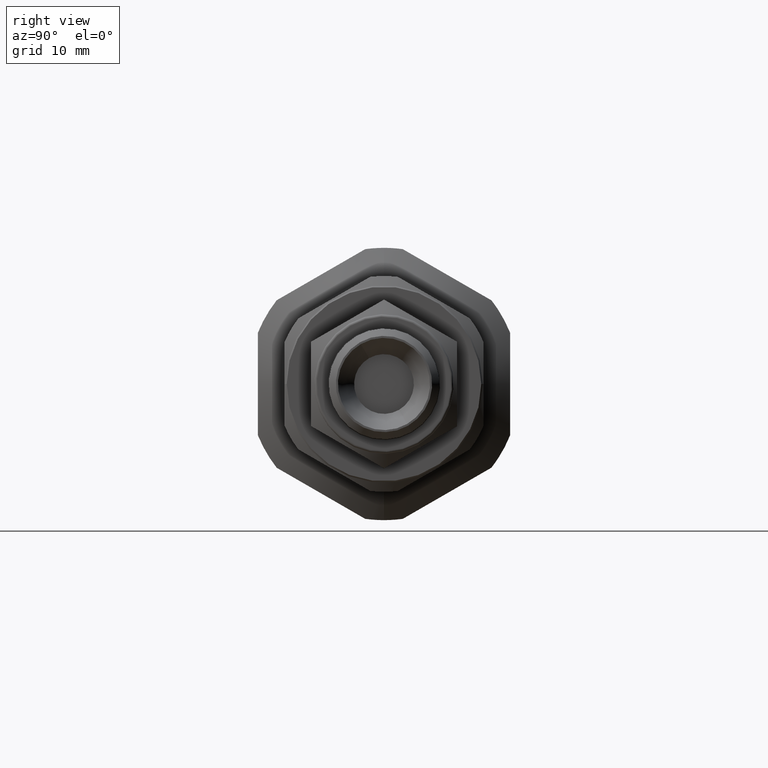
[diagram: clean part render]
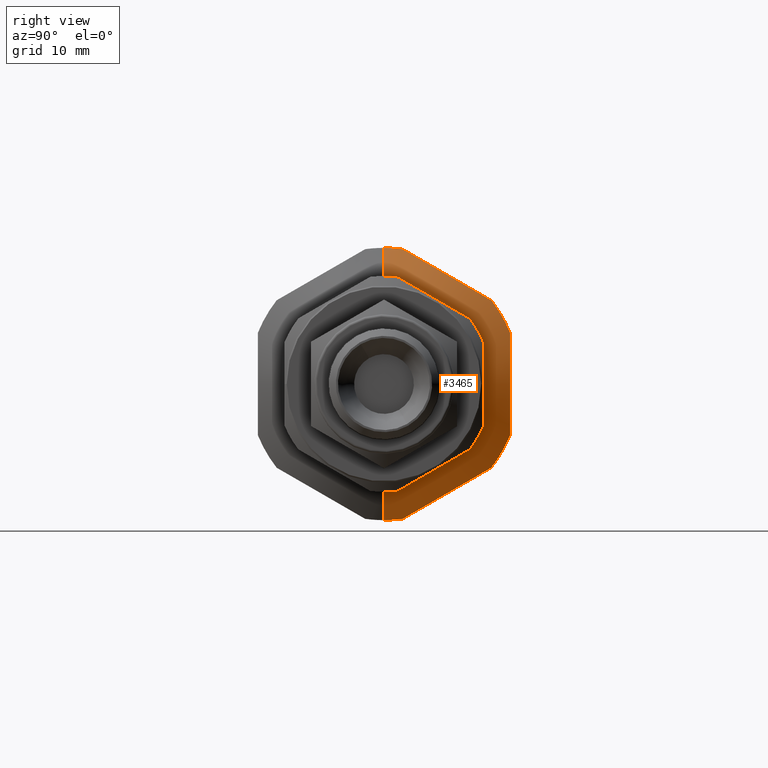
[diagram: same view with one face highlighted and labeled with its STEP entity id]
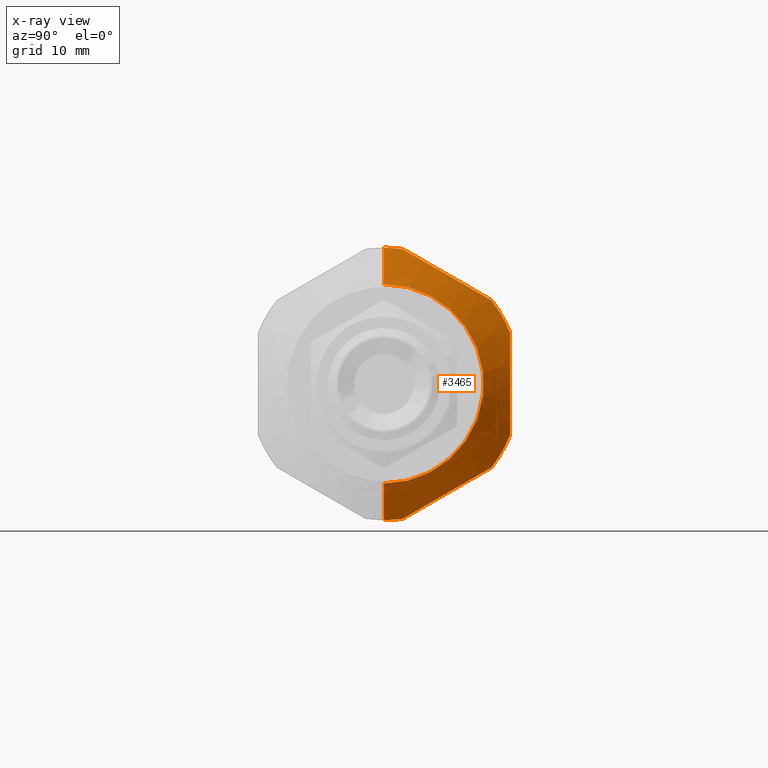
[diagram: x-ray of the same camera — body ghosted, the highlighted face saturated]
A machine part, right view. The second image highlights one B-rep face of the part: STEP entity #3465.
The next image is the same camera in x-ray: the body ghosted, the highlighted face saturated — about 0% of this face is hidden behind the body in this view.
In plain terms, the highlighted conical surface has half-angle 60 deg.
Its self-contained STEP definition (entity closure, byte-faithful):
#32 = VERTEX_POINT ( 'NONE', #426 ) ;
#35 = VERTEX_POINT ( 'NONE', #429 ) ;
#38 = VERTEX_POINT ( 'NONE', #432 ) ;
#41 = VERTEX_POINT ( 'NONE', #435 ) ;
#43 = VERTEX_POINT ( 'NONE', #437 ) ;
#45 = VERTEX_POINT ( 'NONE', #439 ) ;
#57 = VERTEX_POINT ( 'NONE', #451 ) ;
#58 = VERTEX_POINT ( 'NONE', #453 ) ;
#59 = VERTEX_POINT ( 'NONE', #454 ) ;
#75 = VERTEX_POINT ( 'NONE', #470 ) ;
#82 = ORIENTED_EDGE ( 'NONE', *, *, #2296, .F. ) ;
#84 = ORIENTED_EDGE ( 'NONE', *, *, #2297, .F. ) ;
#85 = ORIENTED_EDGE ( 'NONE', *, *, #2293, .T. ) ;
#87 = ORIENTED_EDGE ( 'NONE', *, *, #2295, .F. ) ;
#89 = ORIENTED_EDGE ( 'NONE', *, *, #2298, .F. ) ;
#90 = ORIENTED_EDGE ( 'NONE', *, *, #2299, .F. ) ;
#94 = ORIENTED_EDGE ( 'NONE', *, *, #2294, .T. ) ;
#173 = ORIENTED_EDGE ( 'NONE', *, *, #2302, .F. ) ;
#256 = EDGE_LOOP ( 'NONE', ( #85, #94, #87, #82, #84, #89, #90, #331, #330, #173 ) ) ;
#330 = ORIENTED_EDGE ( 'NONE', *, *, #2301, .F. ) ;
#331 = ORIENTED_EDGE ( 'NONE', *, *, #2300, .F. ) ;
#426 = CARTESIAN_POINT ( 'NONE',  ( 47.82457351945704700, 18.99999999999999300, 7.697402159170346500 ) ) ;
#429 = CARTESIAN_POINT ( 'NONE',  ( 47.82457351945704700, 16.16614581298670900, -12.60578159231915400 ) ) ;
#432 = CARTESIAN_POINT ( 'NONE',  ( 51.00000000000000000, 0.0000000000000000000, 15.00000000000000000 ) ) ;
#435 = CARTESIAN_POINT ( 'NONE',  ( 47.82457351945704700, 19.00000000000000000, -7.697402159170335000 ) ) ;
#437 = CARTESIAN_POINT ( 'NONE',  ( 47.82457351945704700, 0.0000000000000000000, 20.50000000000000000 ) ) ;
#439 = CARTESIAN_POINT ( 'NONE',  ( 51.00000000000000000, 2.173748068486552000E-015, -15.00000000000000000 ) ) ;
#451 = CARTESIAN_POINT ( 'NONE',  ( 47.82457351945704700, 16.16614581298668800, 12.60578159231917400 ) ) ;
#453 = CARTESIAN_POINT ( 'NONE',  ( 47.82457351945704700, 2.833854187013312900, 20.30318375148950200 ) ) ;
#454 = CARTESIAN_POINT ( 'NONE',  ( 47.82457351945704700, 2.833854187013301400, -20.30318375148949900 ) ) ;
#470 = CARTESIAN_POINT ( 'NONE',  ( 47.82457351945704700, 2.510525938252074100E-015, -20.50000000000000000 ) ) ;
#987 = CARTESIAN_POINT ( 'NONE',  ( 51.00000000000000000, 0.0000000000000000000, 0.0000000000000000000 ) ) ;
#988 = DIRECTION ( 'NONE',  ( -1.000000000000000000, 0.0000000000000000000, 0.0000000000000000000 ) ) ;
#989 = DIRECTION ( 'NONE',  ( 0.0000000000000000000, 0.0000000000000000000, 1.000000000000000000 ) ) ;
#990 = CARTESIAN_POINT ( 'NONE',  ( 51.00000000000000000, 1.836970198721029600E-015, -15.00000000000000000 ) ) ;
#991 = DIRECTION ( 'NONE',  ( -0.5000000000000006700, 1.060575238724906400E-016, -0.8660254037844382600 ) ) ;
#992 = CARTESIAN_POINT ( 'NONE',  ( 47.82457351945704700, 0.0000000000000000000, 0.0000000000000000000 ) ) ;
#993 = DIRECTION ( 'NONE',  ( -1.000000000000000000, 0.0000000000000000000, 0.0000000000000000000 ) ) ;
#994 = DIRECTION ( 'NONE',  ( 0.0000000000000000000, 0.0000000000000000000, 1.000000000000000000 ) ) ;
#995 = CARTESIAN_POINT ( 'NONE',  ( 47.82457351945704700, 16.16614581298670900, -12.60578159231915400 ) ) ;
#996 = CARTESIAN_POINT ( 'NONE',  ( 48.09997343377329300, 15.06596328515357000, -13.24097227092134000 ) ) ;
#997 = CARTESIAN_POINT ( 'NONE',  ( 48.31734751324786000, 13.96264226399308800, -13.87797495949091900 ) ) ;
#998 = CARTESIAN_POINT ( 'NONE',  ( 48.61230316569044900, 11.74843914391974500, -15.15634572690576900 ) ) ;
#999 = CARTESIAN_POINT ( 'NONE',  ( 48.68957143286932200, 10.63754009896672100, -15.79772358955190000 ) ) ;
#1000 = CARTESIAN_POINT ( 'NONE',  ( 48.69109726211063800, 8.965005147359823600, -16.76336209409119200 ) ) ;
#1001 = CARTESIAN_POINT ( 'NONE',  ( 48.67266841281092800, 8.406469210159166000, -17.08583296778607900 ) ) ;
#1002 = CARTESIAN_POINT ( 'NONE',  ( 48.59809001003787900, 7.287357103528965900, -17.73195264380239100 ) ) ;
#1003 = CARTESIAN_POINT ( 'NONE',  ( 48.54179217492908500, 6.725726807744101700, -18.05621004625884000 ) ) ;
#1004 = CARTESIAN_POINT ( 'NONE',  ( 48.31939331902862700, 5.045940800212459700, -19.02603494988819600 ) ) ;
#1005 = CARTESIAN_POINT ( 'NONE',  ( 48.10044773392966300, 3.935931474858201700, -19.66689913268447800 ) ) ;
#1006 = CARTESIAN_POINT ( 'NONE',  ( 47.82457351945704700, 2.833854187013301400, -20.30318375148949900 ) ) ;
#1007 = CARTESIAN_POINT ( 'NONE',  ( 47.82457351945704700, 0.0000000000000000000, 0.0000000000000000000 ) ) ;
#1008 = DIRECTION ( 'NONE',  ( -1.000000000000000000, 0.0000000000000000000, 0.0000000000000000000 ) ) ;
#1009 = DIRECTION ( 'NONE',  ( 0.0000000000000000000, 0.0000000000000000000, 1.000000000000000000 ) ) ;
#1010 = CARTESIAN_POINT ( 'NONE',  ( 47.82457351945704700, 18.99999999999999300, 7.697402159170346500 ) ) ;
#1011 = CARTESIAN_POINT ( 'NONE',  ( 48.09735179383076800, 18.99999999999999600, 6.439114061023605700 ) ) ;
#1012 = CARTESIAN_POINT ( 'NONE',  ( 48.31594812726856200, 18.99999999999998900, 5.165705329049851400 ) ) ;
#1013 = CARTESIAN_POINT ( 'NONE',  ( 48.53956643349729900, 19.00000000000000400, 3.226491720512723500 ) ) ;
#1014 = CARTESIAN_POINT ( 'NONE',  ( 48.59653737208923000, 18.99999999999999600, 2.575425014172620900 ) ) ;
#1015 = CARTESIAN_POINT ( 'NONE',  ( 48.67203677070919100, 19.00000000000000000, 1.279879194535291600 ) ) ;
#1016 = CARTESIAN_POINT ( 'NONE',  ( 48.69082968266214100, 18.99999999999999600, 0.6333674360882832800 ) ) ;
#1017 = CARTESIAN_POINT ( 'NONE',  ( 48.69013097299387000, 19.00000000000000700, -1.302370608352708500 ) ) ;
#1018 = CARTESIAN_POINT ( 'NONE',  ( 48.61305821423189900, 18.99999999999999600, -2.587766154004513400 ) ) ;
#1019 = CARTESIAN_POINT ( 'NONE',  ( 48.31801491160320000, 19.00000000000000000, -5.149183640403350600 ) ) ;
#1020 = CARTESIAN_POINT ( 'NONE',  ( 48.10036236067014700, 19.00000000000000400, -6.425226736487360300 ) ) ;
#1021 = CARTESIAN_POINT ( 'NONE',  ( 47.82457351945704700, 19.00000000000000000, -7.697402159170335000 ) ) ;
#1022 = CARTESIAN_POINT ( 'NONE',  ( 47.82457351945704700, 0.0000000000000000000, 0.0000000000000000000 ) ) ;
#1023 = DIRECTION ( 'NONE',  ( -1.000000000000000000, 0.0000000000000000000, 0.0000000000000000000 ) ) ;
#1024 = DIRECTION ( 'NONE',  ( 0.0000000000000000000, 0.0000000000000000000, 1.000000000000000000 ) ) ;
#1025 = CARTESIAN_POINT ( 'NONE',  ( 47.82457351945704700, 2.833854187013312900, 20.30318375148950200 ) ) ;
#1026 = CARTESIAN_POINT ( 'NONE',  ( 48.09997343377328600, 3.934036714846447700, 19.66799307288731000 ) ) ;
#1027 = CARTESIAN_POINT ( 'NONE',  ( 48.31734751324786700, 5.037357736006930200, 19.03099038431773600 ) ) ;
#1028 = CARTESIAN_POINT ( 'NONE',  ( 48.61230316569043500, 7.251560856080262200, 17.75261961690288400 ) ) ;
#1029 = CARTESIAN_POINT ( 'NONE',  ( 48.68957143286931500, 8.362459901033288300, 17.11124175425675300 ) ) ;
#1030 = CARTESIAN_POINT ( 'NONE',  ( 48.69109726211063100, 10.03499485264018200, 16.14560324971746000 ) ) ;
#1031 = CARTESIAN_POINT ( 'NONE',  ( 48.67266841281093500, 10.59353078984083900, 15.82313237602258500 ) ) ;
#1032 = CARTESIAN_POINT ( 'NONE',  ( 48.59809001003787200, 11.71264289647103300, 15.17701270000626600 ) ) ;
#1033 = CARTESIAN_POINT ( 'NONE',  ( 48.54179217492907800, 12.27427319225589600, 14.85275529754983000 ) ) ;
#1034 = CARTESIAN_POINT ( 'NONE',  ( 48.31939331902862700, 13.95405919978753300, 13.88293039392047500 ) ) ;
#1035 = CARTESIAN_POINT ( 'NONE',  ( 48.10044773392966300, 15.06406852514179000, 13.24206621112419500 ) ) ;
#1036 = CARTESIAN_POINT ( 'NONE',  ( 47.82457351945704700, 16.16614581298668800, 12.60578159231917400 ) ) ;
#1037 = CARTESIAN_POINT ( 'NONE',  ( 47.82457351945704700, 0.0000000000000000000, 0.0000000000000000000 ) ) ;
#1038 = DIRECTION ( 'NONE',  ( -1.000000000000000000, 0.0000000000000000000, 0.0000000000000000000 ) ) ;
#1039 = DIRECTION ( 'NONE',  ( 0.0000000000000000000, 0.0000000000000000000, 1.000000000000000000 ) ) ;
#1040 = CARTESIAN_POINT ( 'NONE',  ( 51.00000000000000000, 0.0000000000000000000, 15.00000000000000000 ) ) ;
#1041 = DIRECTION ( 'NONE',  ( -0.5000000000000006700, 0.0000000000000000000, 0.8660254037844382600 ) ) ;
#1788 = B_SPLINE_CURVE_WITH_KNOTS ( 'NONE', 3,
 ( #1025, #1026, #1027, #1028, #1029, #1030, #1031, #1032, #1033, #1034, #1035, #1036 ),
 .UNSPECIFIED., .F., .F.,
 ( 4, 2, 2, 2, 2, 4 ),
 ( 9.331973758934499500E-007, 0.003856166144668260700, 0.007711399091960628200, 0.009639015565606812200, 0.01156663203925299500, 0.01542186498654536300 ),
 .UNSPECIFIED. ) ;
#1789 = B_SPLINE_CURVE_WITH_KNOTS ( 'NONE', 3,
 ( #1010, #1011, #1012, #1013, #1014, #1015, #1016, #1017, #1018, #1019, #1020, #1021 ),
 .UNSPECIFIED., .F., .F.,
 ( 4, 2, 2, 2, 2, 4 ),
 ( 0.01194379194759782500, 0.01579969447240709900, 0.01772764573481173900, 0.01965559699721637600, 0.02351149952202565000, 0.02736740204683492400 ),
 .UNSPECIFIED. ) ;
#1790 = B_SPLINE_CURVE_WITH_KNOTS ( 'NONE', 3,
 ( #995, #996, #997, #998, #999, #1000, #1001, #1002, #1003, #1004, #1005, #1006 ),
 .UNSPECIFIED., .F., .F.,
 ( 4, 2, 2, 2, 2, 4 ),
 ( 9.331973758837308900E-007, 0.003856166144668262000, 0.007711399091960640300, 0.009639015565606829500, 0.01156663203925302000, 0.01542186498654539100 ),
 .UNSPECIFIED. ) ;
#2021 = CARTESIAN_POINT ( 'NONE',  ( 51.00000000000000000, 0.0000000000000000000, 0.0000000000000000000 ) ) ;
#2022 = DIRECTION ( 'NONE',  ( -1.000000000000000000, 0.0000000000000000000, 0.0000000000000000000 ) ) ;
#2023 = DIRECTION ( 'NONE',  ( 0.0000000000000000000, 0.0000000000000000000, 1.000000000000000000 ) ) ;
#2293 = EDGE_CURVE ( 'NONE', #38, #45, #3072, .T. ) ;
#2294 = EDGE_CURVE ( 'NONE', #45, #75, #3071, .T. ) ;
#2295 = EDGE_CURVE ( 'NONE', #59, #75, #3074, .T. ) ;
#2296 = EDGE_CURVE ( 'NONE', #35, #59, #1790, .T. ) ;
#2297 = EDGE_CURVE ( 'NONE', #41, #35, #3075, .T. ) ;
#2298 = EDGE_CURVE ( 'NONE', #32, #41, #1789, .T. ) ;
#2299 = EDGE_CURVE ( 'NONE', #57, #32, #3076, .T. ) ;
#2300 = EDGE_CURVE ( 'NONE', #58, #57, #1788, .T. ) ;
#2301 = EDGE_CURVE ( 'NONE', #43, #58, #3078, .T. ) ;
#2302 = EDGE_CURVE ( 'NONE', #38, #43, #3077, .T. ) ;
#2465 = AXIS2_PLACEMENT_3D ( 'NONE', #987, #988, #989 ) ;
#2466 = AXIS2_PLACEMENT_3D ( 'NONE', #992, #993, #994 ) ;
#2467 = AXIS2_PLACEMENT_3D ( 'NONE', #1007, #1008, #1009 ) ;
#2468 = AXIS2_PLACEMENT_3D ( 'NONE', #1022, #1023, #1024 ) ;
#2469 = AXIS2_PLACEMENT_3D ( 'NONE', #1037, #1038, #1039 ) ;
#2564 = AXIS2_PLACEMENT_3D ( 'NONE', #2021, #2022, #2023 ) ;
#3071 = LINE ( 'NONE', #990, #3073 ) ;
#3072 = CIRCLE ( 'NONE', #2465, 15.00000000000000000 ) ;
#3073 = VECTOR ( 'NONE', #991, 1000.000000000000000 ) ;
#3074 = CIRCLE ( 'NONE', #2466, 20.50000000000000000 ) ;
#3075 = CIRCLE ( 'NONE', #2467, 20.50000000000000000 ) ;
#3076 = CIRCLE ( 'NONE', #2468, 20.50000000000000000 ) ;
#3077 = LINE ( 'NONE', #1040, #3079 ) ;
#3078 = CIRCLE ( 'NONE', #2469, 20.50000000000000000 ) ;
#3079 = VECTOR ( 'NONE', #1041, 1000.000000000000000 ) ;
#3318 = FACE_OUTER_BOUND ( 'NONE', #256, .T. ) ;
#3319 = CONICAL_SURFACE ( 'NONE', #2564, 15.00000000000000000, 1.047197551196597000 ) ;
#3465 = ADVANCED_FACE ( 'NONE', ( #3318 ), #3319, .T. ) ;